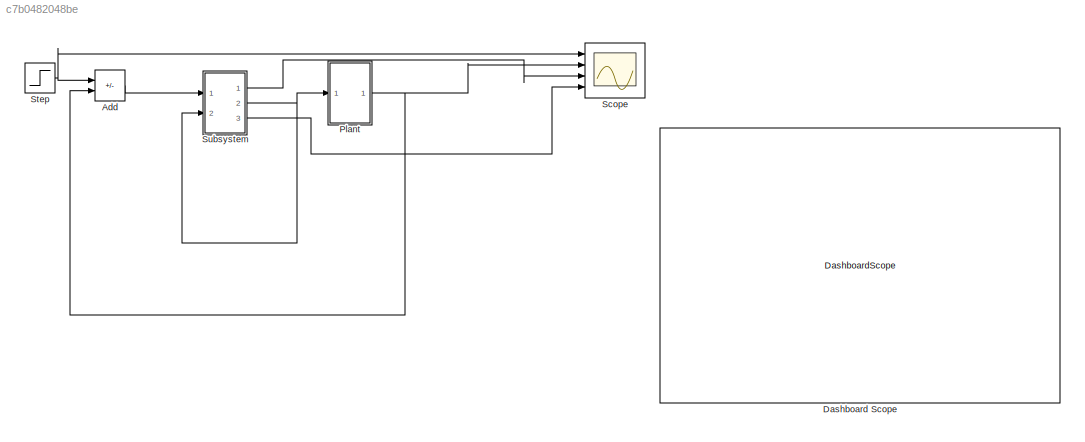
MODEL slx_c7b0482048be
KIND model
CONFIG AbsTol = auto
CONFIG EnableMultiTasking = off
CONFIG FixedStep = auto
CONFIG MaxStep = auto
CONFIG MinStep = auto
CONFIG RelTol = 1e-3
CONFIG SampleTimeConstraint = Unconstrained
CONFIG Solver = VariableStepAuto
CONFIG SolverName = VariableStepAuto
CONFIG StartTime = 0.0
CONFIG StopTime = 10.0
BLOCK [Sum] Add
  IconShape = rectangular
  Inputs = +-
  Ports = [2, 1]
BLOCK [DashboardScope] Dashboard Scope
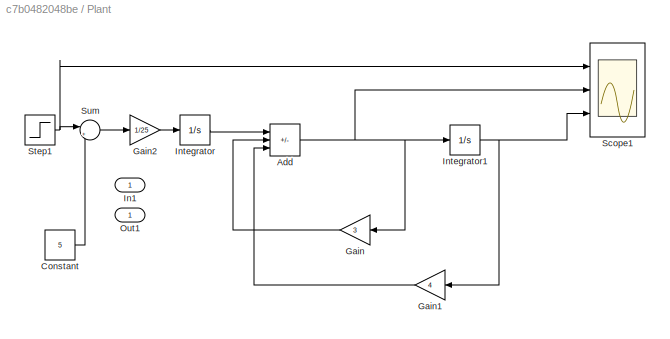
BLOCK [SubSystem] Plant
  Ports = [1, 1]
  RequestExecContextInheritance = off
BLOCK [Sum] Plant/Add
  IconShape = rectangular
  Inputs = +--
  Ports = [3, 1]
BLOCK [Constant] Plant/Constant
  Value = 5
BLOCK [Gain] Plant/Gain
  Gain = 3
BLOCK [Gain] Plant/Gain1
  Gain = 4
BLOCK [Gain] Plant/Gain2
  Gain = 1/25
BLOCK [Inport] Plant/In1
BLOCK [Integrator] Plant/Integrator
  Ports = [1, 1]
BLOCK [Integrator] Plant/Integrator1
  Ports = [1, 1]
BLOCK [Outport] Plant/Out1
BLOCK [Scope] Plant/Scope1
  Floating = off
  NumInputPorts = 3
  Ports = [3]
  ScopeSpecificationString = Simulink.scopes.TimeScopeBlockCfg('CurrentConfiguration', extmgr.ConfigurationSet(extmgr.Configuration('Core','General UI',true),extmgr.Configuration('Core','Source UI',true),extmgr.Configuration('Sources','WiredSimulink',true,'DataLoggingVariableName','ScopeData1'),extmgr.Configuration('Visuals','Time Domain',true,'SerializedDisplays',{struct('MinYLimReal','-0.125','MaxYLimReal','1.125','YLabelRe...<+2706ch>
BLOCK [Step] Plant/Step1
  SampleTime = 0
BLOCK [Sum] Plant/Sum
  Inputs = |++
  Ports = [2, 1]
BLOCK [Scope] Scope
  Floating = off
  NumInputPorts = 4
  Ports = [4]
  ScopeSpecificationString = Simulink.scopes.TimeScopeBlockCfg('CurrentConfiguration', extmgr.ConfigurationSet(extmgr.Configuration('Core','General UI',true),extmgr.Configuration('Core','Source UI',true),extmgr.Configuration('Sources','WiredSimulink',true),extmgr.Configuration('Visuals','Time Domain',true,'SerializedDisplays',{struct('MinYLimReal','0.9','MaxYLimReal','1.1','YLabelReal','','MinYLimMag','0.9','MaxYLimMag','1.1'...<+2674ch>
BLOCK [Step] Step
  Before = -1
  SampleTime = 0
  Time = 0
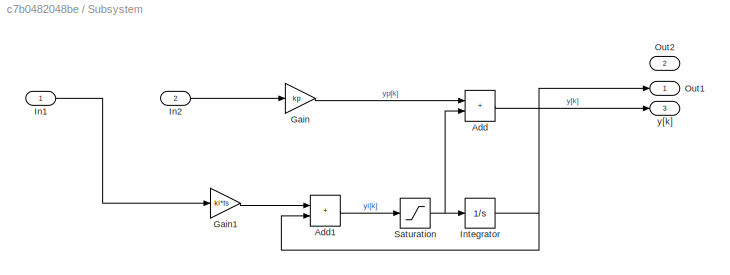
BLOCK [SubSystem] Subsystem
  Ports = [2, 3]
  RequestExecContextInheritance = off
BLOCK [Sum] Subsystem/Add
  IconShape = rectangular
  Ports = [2, 1]
BLOCK [Sum] Subsystem/Add1
  IconShape = rectangular
  Ports = [2, 1]
BLOCK [Gain] Subsystem/Gain
  Gain = kp
BLOCK [Gain] Subsystem/Gain1
  Gain = ki*ts
BLOCK [Inport] Subsystem/In1
BLOCK [Inport] Subsystem/In2
  Port = 2
BLOCK [Integrator] Subsystem/Integrator
  Ports = [1, 1]
BLOCK [Outport] Subsystem/Out1
BLOCK [Outport] Subsystem/Out2
  Port = 2
BLOCK [Saturate] Subsystem/Saturation
BLOCK [Outport] Subsystem/y[k]
  Port = 3
LINE Add:1 -> Subsystem:1
NET Plant/Add:1 -> Plant/Gain:1, Plant/Integrator1:1, Plant/Scope1:2
LINE Plant/Constant:1 -> Plant/Sum:2
LINE Plant/Gain1:1 -> Plant/Add:3
LINE Plant/Gain2:1 -> Plant/Integrator:1
LINE Plant/Gain:1 -> Plant/Add:2
NET Plant/Integrator1:1 -> Plant/Gain1:1, Plant/Scope1:3
LINE Plant/Integrator:1 -> Plant/Add:1
NET Plant/Step1:1 -> Plant/Scope1:1, Plant/Sum:1
LINE Plant/Sum:1 -> Plant/Gain2:1
NET Plant:1 -> Add:2, Scope:2
NET Step:1 -> Add:1, Scope:1
LINE Subsystem/Add1:1 -> Subsystem/Saturation:1
LINE Subsystem/Add:1 -> Subsystem/y[k]:1
LINE Subsystem/Gain1:1 -> Subsystem/Add1:1
LINE Subsystem/Gain:1 -> Subsystem/Add:1
LINE Subsystem/In1:1 -> Subsystem/Gain1:1
LINE Subsystem/In2:1 -> Subsystem/Gain:1
NET Subsystem/Integrator:1 -> Subsystem/Add1:2, Subsystem/Out1:1
NET Subsystem/Saturation:1 -> Subsystem/Add:2, Subsystem/Integrator:1
LINE Subsystem:1 -> Scope:3
NET Subsystem:2 -> Plant:1, Subsystem:2
LINE Subsystem:3 -> Scope:4
note: NET lines group one-source signal fan-out (src -> all destinations, sorted); 1:1 wires keep LINE
